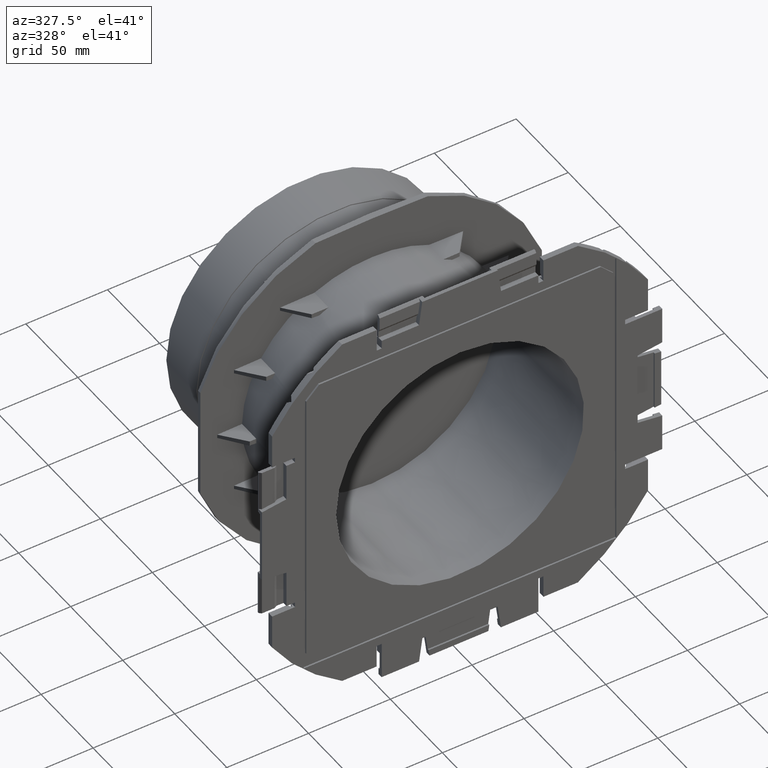
[diagram: clean part render]
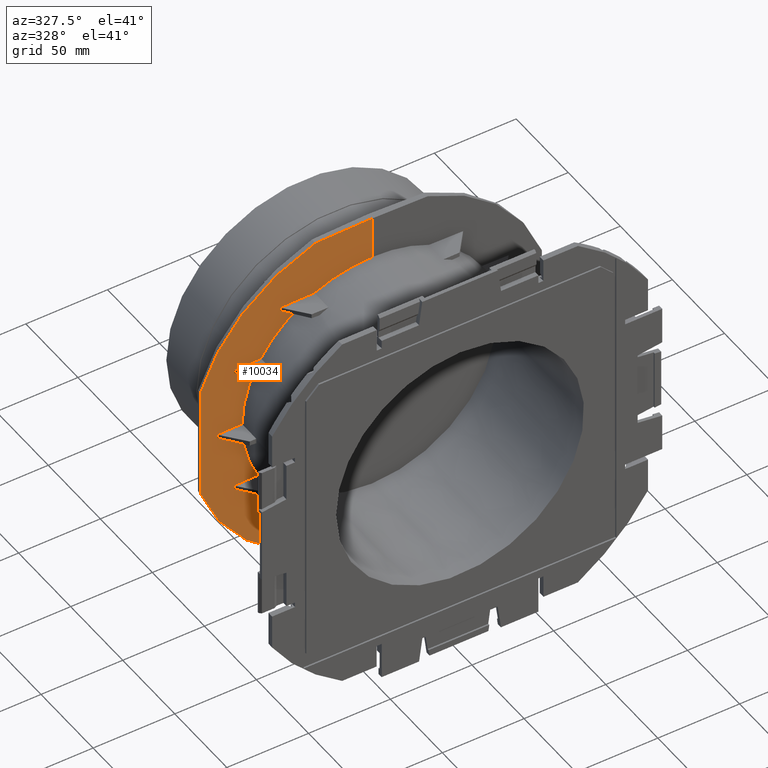
[diagram: same view with one face highlighted and labeled with its STEP entity id]
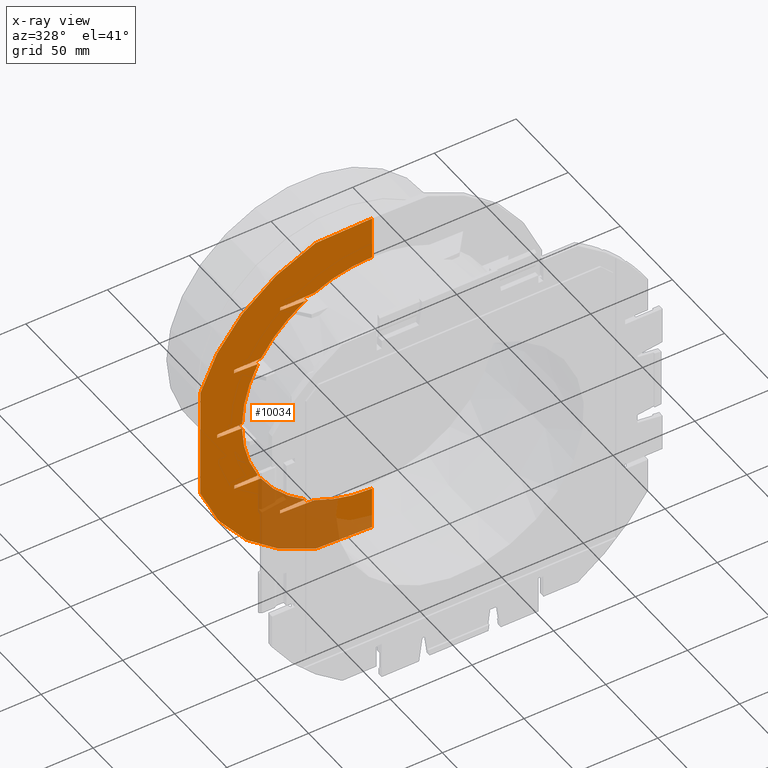
[diagram: x-ray of the same camera — body ghosted, the highlighted face saturated]
A machine part, auxiliary view. The second image highlights one B-rep face of the part: STEP entity #10034.
The next image is the same camera in x-ray: the body ghosted, the highlighted face saturated — about 22% of this face is hidden behind the body in this view.
In plain terms, the highlighted planar face has unit normal (-0.0087, -1, 0).
Its self-contained STEP definition (entity closure, byte-faithful):
#400=ELLIPSE('',#10751,79.1530139042311,79.15);
#401=ELLIPSE('',#10752,79.1530139042311,79.15);
#402=ELLIPSE('',#10753,79.1530139042311,79.15);
#403=ELLIPSE('',#10754,79.1530139042311,79.15);
#404=ELLIPSE('',#10755,79.1530139042311,79.15);
#405=ELLIPSE('',#10756,110.004188622431,110.);
#406=ELLIPSE('',#10757,110.004188622431,110.);
#407=ELLIPSE('',#10758,79.1530139042311,79.15);
#710=FACE_OUTER_BOUND('',#1265,.T.);
#1265=EDGE_LOOP('',(#6618,#6619,#6620,#6621,#6622,#6623,#6624,#6625,#6626,
#6627,#6628,#6629,#6630,#6631,#6632,#6633,#6634,#6635,#6636,#6637,#6638,
#6639,#6640,#6641,#6642,#6643,#6644,#6645));
#1931=LINE('',#16844,#2915);
#1932=LINE('',#16847,#2916);
#1933=LINE('',#16851,#2917);
#1934=LINE('',#16853,#2918);
#1935=LINE('',#16855,#2919);
#1936=LINE('',#16859,#2920);
#1937=LINE('',#16861,#2921);
#1938=LINE('',#16863,#2922);
#1939=LINE('',#16867,#2923);
#1940=LINE('',#16869,#2924);
#1941=LINE('',#16871,#2925);
#1942=LINE('',#16875,#2926);
#1943=LINE('',#16877,#2927);
#1944=LINE('',#16879,#2928);
#1945=LINE('',#16883,#2929);
#1946=LINE('',#16885,#2930);
#1947=LINE('',#16889,#2931);
#1948=LINE('',#16893,#2932);
#1949=LINE('',#16895,#2933);
#1950=LINE('',#16898,#2934);
#2915=VECTOR('',#11816,10.);
#2916=VECTOR('',#11819,10.);
#2917=VECTOR('',#11822,10.);
#2918=VECTOR('',#11823,10.);
#2919=VECTOR('',#11824,10.);
#2920=VECTOR('',#11827,10.);
#2921=VECTOR('',#11828,10.);
#2922=VECTOR('',#11829,10.);
#2923=VECTOR('',#11832,10.);
#2924=VECTOR('',#11833,10.);
#2925=VECTOR('',#11834,10.);
#2926=VECTOR('',#11837,10.);
#2927=VECTOR('',#11838,10.);
#2928=VECTOR('',#11839,10.);
#2929=VECTOR('',#11842,10.);
#2930=VECTOR('',#11843,10.);
#2931=VECTOR('',#11846,10.);
#2932=VECTOR('',#11849,10.);
#2933=VECTOR('',#11850,10.);
#2934=VECTOR('',#11853,10.);
#4168=VERTEX_POINT('',#16838);
#4170=VERTEX_POINT('',#16842);
#4171=VERTEX_POINT('',#16846);
#4172=VERTEX_POINT('',#16848);
#4173=VERTEX_POINT('',#16850);
#4174=VERTEX_POINT('',#16852);
#4175=VERTEX_POINT('',#16854);
#4176=VERTEX_POINT('',#16856);
#4177=VERTEX_POINT('',#16858);
#4178=VERTEX_POINT('',#16860);
#4179=VERTEX_POINT('',#16862);
#4180=VERTEX_POINT('',#16864);
#4181=VERTEX_POINT('',#16866);
#4182=VERTEX_POINT('',#16868);
#4183=VERTEX_POINT('',#16870);
#4184=VERTEX_POINT('',#16872);
#4185=VERTEX_POINT('',#16874);
#4186=VERTEX_POINT('',#16876);
#4187=VERTEX_POINT('',#16878);
#4188=VERTEX_POINT('',#16880);
#4189=VERTEX_POINT('',#16882);
#4190=VERTEX_POINT('',#16884);
#4191=VERTEX_POINT('',#16886);
#4192=VERTEX_POINT('',#16888);
#4193=VERTEX_POINT('',#16890);
#4194=VERTEX_POINT('',#16892);
#4195=VERTEX_POINT('',#16894);
#4196=VERTEX_POINT('',#16896);
#5141=EDGE_CURVE('',#4170,#4168,#1931,.T.);
#5142=EDGE_CURVE('',#4170,#4171,#1932,.T.);
#5143=EDGE_CURVE('',#4171,#4172,#400,.T.);
#5144=EDGE_CURVE('',#4172,#4173,#1933,.T.);
#5145=EDGE_CURVE('',#4173,#4174,#1934,.T.);
#5146=EDGE_CURVE('',#4174,#4175,#1935,.T.);
#5147=EDGE_CURVE('',#4175,#4176,#401,.T.);
#5148=EDGE_CURVE('',#4176,#4177,#1936,.T.);
#5149=EDGE_CURVE('',#4178,#4177,#1937,.T.);
#5150=EDGE_CURVE('',#4178,#4179,#1938,.T.);
#5151=EDGE_CURVE('',#4179,#4180,#402,.T.);
#5152=EDGE_CURVE('',#4180,#4181,#1939,.T.);
#5153=EDGE_CURVE('',#4182,#4181,#1940,.T.);
#5154=EDGE_CURVE('',#4182,#4183,#1941,.T.);
#5155=EDGE_CURVE('',#4183,#4184,#403,.T.);
#5156=EDGE_CURVE('',#4184,#4185,#1942,.T.);
#5157=EDGE_CURVE('',#4186,#4185,#1943,.T.);
#5158=EDGE_CURVE('',#4186,#4187,#1944,.T.);
#5159=EDGE_CURVE('',#4187,#4188,#404,.T.);
#5160=EDGE_CURVE('',#4189,#4188,#1945,.T.);
#5161=EDGE_CURVE('',#4189,#4190,#1946,.T.);
#5162=EDGE_CURVE('',#4190,#4191,#405,.T.);
#5163=EDGE_CURVE('',#4191,#4192,#1947,.T.);
#5164=EDGE_CURVE('',#4192,#4193,#406,.T.);
#5165=EDGE_CURVE('',#4193,#4194,#1948,.T.);
#5166=EDGE_CURVE('',#4195,#4194,#1949,.T.);
#5167=EDGE_CURVE('',#4195,#4196,#407,.T.);
#5168=EDGE_CURVE('',#4196,#4168,#1950,.T.);
#6618=ORIENTED_EDGE('',*,*,#5141,.F.);
#6619=ORIENTED_EDGE('',*,*,#5142,.T.);
#6620=ORIENTED_EDGE('',*,*,#5143,.T.);
#6621=ORIENTED_EDGE('',*,*,#5144,.T.);
#6622=ORIENTED_EDGE('',*,*,#5145,.T.);
#6623=ORIENTED_EDGE('',*,*,#5146,.T.);
#6624=ORIENTED_EDGE('',*,*,#5147,.T.);
#6625=ORIENTED_EDGE('',*,*,#5148,.T.);
#6626=ORIENTED_EDGE('',*,*,#5149,.F.);
#6627=ORIENTED_EDGE('',*,*,#5150,.T.);
#6628=ORIENTED_EDGE('',*,*,#5151,.T.);
#6629=ORIENTED_EDGE('',*,*,#5152,.T.);
#6630=ORIENTED_EDGE('',*,*,#5153,.F.);
#6631=ORIENTED_EDGE('',*,*,#5154,.T.);
#6632=ORIENTED_EDGE('',*,*,#5155,.T.);
#6633=ORIENTED_EDGE('',*,*,#5156,.T.);
#6634=ORIENTED_EDGE('',*,*,#5157,.F.);
#6635=ORIENTED_EDGE('',*,*,#5158,.T.);
#6636=ORIENTED_EDGE('',*,*,#5159,.T.);
#6637=ORIENTED_EDGE('',*,*,#5160,.F.);
#6638=ORIENTED_EDGE('',*,*,#5161,.T.);
#6639=ORIENTED_EDGE('',*,*,#5162,.T.);
#6640=ORIENTED_EDGE('',*,*,#5163,.T.);
#6641=ORIENTED_EDGE('',*,*,#5164,.T.);
#6642=ORIENTED_EDGE('',*,*,#5165,.T.);
#6643=ORIENTED_EDGE('',*,*,#5166,.F.);
#6644=ORIENTED_EDGE('',*,*,#5167,.T.);
#6645=ORIENTED_EDGE('',*,*,#5168,.T.);
#9112=PLANE('',#10750);
#10034=ADVANCED_FACE('',(#710),#9112,.T.);
#10750=AXIS2_PLACEMENT_3D('',#16845,#11817,#11818);
#10751=AXIS2_PLACEMENT_3D('',#16849,#11820,#11821);
#10752=AXIS2_PLACEMENT_3D('',#16857,#11825,#11826);
#10753=AXIS2_PLACEMENT_3D('',#16865,#11830,#11831);
#10754=AXIS2_PLACEMENT_3D('',#16873,#11835,#11836);
#10755=AXIS2_PLACEMENT_3D('',#16881,#11840,#11841);
#10756=AXIS2_PLACEMENT_3D('',#16887,#11844,#11845);
#10757=AXIS2_PLACEMENT_3D('',#16891,#11847,#11848);
#10758=AXIS2_PLACEMENT_3D('',#16897,#11851,#11852);
#11816=DIRECTION('',(0.,0.,-1.));
#11817=DIRECTION('center_axis',(-0.00872653549837393,-0.999961923064171,
0.));
#11818=DIRECTION('ref_axis',(0.,0.,-1.));
#11819=DIRECTION('',(0.999619287168872,-0.00872354536021529,0.0261759522528506));
#11820=DIRECTION('center_axis',(0.00872653549837393,0.999961923064171,0.));
#11821=DIRECTION('ref_axis',(0.999961923064171,-0.00872653549837393,0.));
#11822=DIRECTION('',(-0.999619287168872,0.00872354536021529,0.0261759522528506));
#11823=DIRECTION('',(0.,0.,1.));
#11824=DIRECTION('',(0.999619287168872,-0.00872354536021529,0.0261759522528506));
#11825=DIRECTION('center_axis',(0.00872653549837393,0.999961923064171,0.));
#11826=DIRECTION('ref_axis',(0.999961923064171,-0.00872653549837393,0.));
#11827=DIRECTION('',(-0.999619287168872,0.00872354536021529,0.0261759522528506));
#11828=DIRECTION('',(0.,0.,-1.));
#11829=DIRECTION('',(0.999619287168872,-0.00872354536021529,0.0261759522528506));
#11830=DIRECTION('center_axis',(0.00872653549837393,0.999961923064171,0.));
#11831=DIRECTION('ref_axis',(0.999961923064171,-0.00872653549837393,0.));
#11832=DIRECTION('',(-0.999619287168872,0.00872354536021529,0.0261759522528506));
#11833=DIRECTION('',(0.,0.,-1.));
#11834=DIRECTION('',(0.999619287168872,-0.00872354536021529,0.0261759522528506));
#11835=DIRECTION('center_axis',(0.00872653549837393,0.999961923064171,0.));
#11836=DIRECTION('ref_axis',(0.999961923064171,-0.00872653549837393,0.));
#11837=DIRECTION('',(-0.999619287168872,0.00872354536021529,0.0261759522528506));
#11838=DIRECTION('',(0.,0.,-1.));
#11839=DIRECTION('',(0.999619287168872,-0.00872354536021529,0.0261759522528506));
#11840=DIRECTION('center_axis',(0.00872653549837393,0.999961923064171,0.));
#11841=DIRECTION('ref_axis',(0.999961923064171,-0.00872653549837393,0.));
#11842=DIRECTION('',(0.,0.,-1.));
#11843=DIRECTION('',(-0.99953842206173,0.00872283966111637,-0.0291007713058166));
#11844=DIRECTION('center_axis',(-0.00872653549837393,-0.999961923064171,
0.));
#11845=DIRECTION('ref_axis',(0.999961923064171,-0.00872653549837393,0.));
#11846=DIRECTION('',(0.,0.,-1.));
#11847=DIRECTION('center_axis',(-0.00872653549837393,-0.999961923064171,
0.));
#11848=DIRECTION('ref_axis',(0.999961923064171,-0.00872653549837393,0.));
#11849=DIRECTION('',(0.99953842206173,-0.00872283966111637,-0.0291007713058166));
#11850=DIRECTION('',(0.,0.,-1.));
#11851=DIRECTION('center_axis',(0.00872653549837393,0.999961923064171,0.));
#11852=DIRECTION('ref_axis',(0.999961923064171,-0.00872653549837393,0.));
#11853=DIRECTION('',(-0.999619287168872,0.00872354536021529,0.0261759522528506));
#16838=CARTESIAN_POINT('',(-56.0160157248381,-3.51115563660427,-70.374722429666));
#16842=CARTESIAN_POINT('',(-56.0160157248381,-3.51115563660427,-68.3240550943258));
#16844=CARTESIAN_POINT('',(-56.0160157248381,-3.51115563660427,12.5768218766743));
#16845=CARTESIAN_POINT('Origin',(0.,-4.,94.575));
#16846=CARTESIAN_POINT('',(-40.6375671714666,-3.64536132395653,-67.9213562466514));
#16847=CARTESIAN_POINT('',(-18.9692027258428,-3.83445827571546,-67.3539501547458));
#16848=CARTESIAN_POINT('',(-67.6713082764991,-3.40944143944331,-41.0526069348467));
#16849=CARTESIAN_POINT('Origin',(0.,-4.,0.));
#16850=CARTESIAN_POINT('',(-84.0372670511977,-3.26661788094751,-40.6240492219679));
#16851=CARTESIAN_POINT('',(-36.7904341784067,-3.67893474496043,-41.8612510819673));
#16852=CARTESIAN_POINT('',(-84.0372670511977,-3.26661788094751,-38.4358290428558));
#16853=CARTESIAN_POINT('',(-84.0372670511977,-3.26661788094751,27.5111965325766));
#16854=CARTESIAN_POINT('',(-69.4026051777745,-3.39433264027933,-38.0526069348467));
#16855=CARTESIAN_POINT('',(-33.2817427339074,-3.70955463131514,-37.1067488638803));
#16856=CARTESIAN_POINT('',(-79.1357852049248,-3.30939246499873,-1.5));
#16857=CARTESIAN_POINT('Origin',(0.,-4.,0.));
#16858=CARTESIAN_POINT('',(-94.2077105881382,-3.17786176482725,-1.10532774401855));
#16859=CARTESIAN_POINT('',(-41.3264642037689,-3.63934941063418,-2.49007191432049));
#16860=CARTESIAN_POINT('',(-94.2077105881382,-3.17786176482725,1.10532774401853));
#16861=CARTESIAN_POINT('',(-94.2077105881382,-3.17786176482725,47.2875));
#16862=CARTESIAN_POINT('',(-79.1357852049248,-3.30939246499873,1.5));
#16863=CARTESIAN_POINT('',(-38.8518160085936,-3.66094533826211,2.55487285787066));
#16864=CARTESIAN_POINT('',(-69.4026051777745,-3.39433264027933,38.0526069348467));
#16865=CARTESIAN_POINT('Origin',(0.,-4.,0.));
#16866=CARTESIAN_POINT('',(-84.0372670511977,-3.2666178809475,38.4358290428558));
#16867=CARTESIAN_POINT('',(-35.7563909290827,-3.6879587036872,37.1715498074304));
#16868=CARTESIAN_POINT('',(-84.0372670511977,-3.2666178809475,40.6240492219679));
#16869=CARTESIAN_POINT('',(-84.0372670511977,-3.2666178809475,67.0638034674234));
#16870=CARTESIAN_POINT('',(-67.6713082764991,-3.40944143944331,41.0526069348468));
#16871=CARTESIAN_POINT('',(-34.3157859832315,-3.70053067258836,41.9260520255175));
#16872=CARTESIAN_POINT('',(-40.6375671714666,-3.64536132395653,67.9213562466515));
#16873=CARTESIAN_POINT('Origin',(0.,-4.,0.));
#16874=CARTESIAN_POINT('',(-56.0160157248381,-3.51115563660427,68.3240550943258));
#16875=CARTESIAN_POINT('',(-21.443850921018,-3.81286234808753,67.418751098296));
#16876=CARTESIAN_POINT('',(-56.0160157248381,-3.51115563660427,70.374722429666));
#16877=CARTESIAN_POINT('',(-56.0160157248381,-3.51115563660427,81.9981781233257));
#16878=CARTESIAN_POINT('',(-35.1409124545102,-3.69332990296286,70.9213562466515));
#16879=CARTESIAN_POINT('',(-20.782856200584,-3.81863076162315,71.2973351816027));
#16880=CARTESIAN_POINT('',(0.,-4.,79.15));
#16881=CARTESIAN_POINT('Origin',(0.,-4.,0.));
#16882=CARTESIAN_POINT('',(0.,-4.,105.5));
#16883=CARTESIAN_POINT('',(0.,-4.,47.2875));
#16884=CARTESIAN_POINT('',(-34.3474889911912,-3.70025400462933,104.5));
#16885=CARTESIAN_POINT('',(-0.17632721624272,-3.99846121569593,105.494866372436));
#16886=CARTESIAN_POINT('',(-104.5,-3.0880423158657,34.3474889911911));
#16887=CARTESIAN_POINT('Origin',(0.,-4.,0.));
#16888=CARTESIAN_POINT('',(-104.5,-3.0880423158657,-34.3474889911911));
#16889=CARTESIAN_POINT('',(-104.5,-3.0880423158657,30.1137555044044));
#16890=CARTESIAN_POINT('',(-34.3474889911912,-3.70025400462933,-104.5));
#16891=CARTESIAN_POINT('Origin',(0.,-4.,0.));
#16892=CARTESIAN_POINT('',(0.,-4.,-105.5));
#16893=CARTESIAN_POINT('',(-2.92726230517475,-3.97445416887386,-105.414775071158));
#16894=CARTESIAN_POINT('',(0.,-4.,-79.15));
#16895=CARTESIAN_POINT('',(0.,-4.,47.2875));
#16896=CARTESIAN_POINT('',(-35.1409124545103,-3.69332990296286,-70.9213562466514));
#16897=CARTESIAN_POINT('Origin',(0.,-4.,0.));
#16898=CARTESIAN_POINT('',(-23.2575043957592,-3.79703483399521,-71.2325342380525));